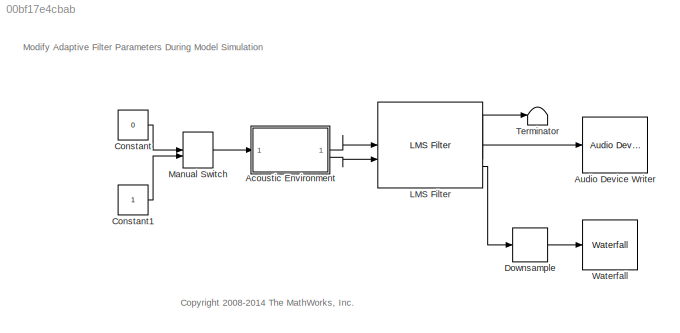
MODEL slx_00bf17e4cbab
KIND model
CONFIG AbsTol = auto
CONFIG EnableMultiTasking = on
CONFIG FixedStep = auto
CONFIG MaxStep = auto
CONFIG MinStep = auto
CONFIG RelTol = 1e-3
CONFIG SampleTimeConstraint = Unconstrained
CONFIG SolverName = ode45
CONFIG StartTime = 0.0
CONFIG StopTime = 10.0
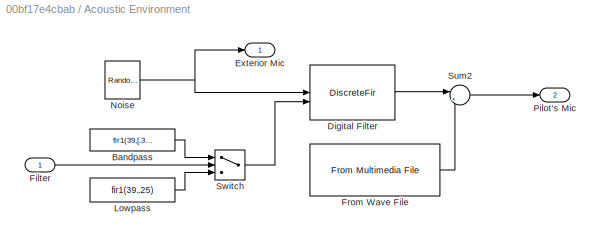
BLOCK [SubSystem] Acoustic Environment
  NameLocation = top
BLOCK [Constant] Acoustic Environment/Bandpass
  NameLocation = top
  OutDataTypeStr = Inherit: Inherit via back propagation
  Value = fir1(39,[.3 .5])
BLOCK [DiscreteFir] Acoustic Environment/Digital Filter
  AccumDataTypeStr = Inherit: Same as product output
  CoefSource = Input port
  Coefficients = [1 2]
  InputPortMap = u0,u1
  InputProcessing = Columns as channels (frame based)
  OutDataTypeStr = Inherit: Same as input
  OutputPortMap = o0
  ProductDataTypeStr = Inherit: Same as input
  StateDataTypeStr = Inherit: Same as input
BLOCK [Outport] Acoustic Environment/Exterior Mic
  NameLocation = top
  VectorParamsAs1DForOutWhenUnconnected = off
BLOCK [Inport] Acoustic Environment/Filter
BLOCK [Reference] Acoustic Environment/From Wave File  REF=dspvision/From Multimedia File
  SourceBlock = dspvision/From Multimedia File
  SourceType = From Multimedia File
BLOCK [Constant] Acoustic Environment/Lowpass
  OutDataTypeStr = Inherit: Inherit via back propagation
  Value = fir1(39,.25)
BLOCK [Reference] Acoustic Environment/Noise  REF=dspsrcs4/Random
Source
  NameLocation = top
  SourceBlock = dspsrcs4/Random\nSource
  SourceType = Random Source
BLOCK [Outport] Acoustic Environment/Pilot's Mic
  Port = 2
  VectorParamsAs1DForOutWhenUnconnected = off
BLOCK [Sum] Acoustic Environment/Sum2
  InputSameDT = on
  Inputs = |++
  OutDataTypeStr = Inherit: Same as first input
  SaturateOnIntegerOverflow = on
BLOCK [Switch] Acoustic Environment/Switch
  Criteria = u2 ~= 0
  InputSameDT = off
BLOCK [Reference] Audio Device Writer  REF=dspsnks4/Audio Device
Writer
  SourceBlock = dspsnks4/Audio Device\nWriter
  SourceType = Audio Device Writer
BLOCK [Constant] Constant
  Value = 0
BLOCK [Constant] Constant1
BLOCK [DownSample] Downsample
  InputProcessing = Elements as channels (sample based)
  N = 32
  RateOptions = Allow multirate processing
  UserDataPersistent = on
BLOCK [Reference] LMS Filter  REF=dspadpt3/LMS Filter
  SourceBlock = dspadpt3/LMS Filter
  SourceType = LMS Filter
BLOCK [ManualSwitch] Manual Switch
BLOCK [Terminator] Terminator
BLOCK [Reference] Waterfall  REF=dspobslib/Waterfall
  SourceBlock = dspobslib/Waterfall
  SourceType = Waterfall
ANNOTATION (root): <copyright redacted>
ANNOTATION (root): Modify Adaptive Filter Parameters During Model Simulation
LINE Acoustic Environment/Bandpass:1 -> Acoustic Environment/Switch:1
LINE Acoustic Environment/Digital Filter:1 -> Acoustic Environment/Sum2:1
LINE Acoustic Environment/Filter:1 -> Acoustic Environment/Switch:2
LINE Acoustic Environment/From Wave File:1 -> Acoustic Environment/Sum2:2
LINE Acoustic Environment/Lowpass:1 -> Acoustic Environment/Switch:3
NET Acoustic Environment/Noise:1 -> Acoustic Environment/Digital Filter:1, Acoustic Environment/Exterior Mic:1
LINE Acoustic Environment/Sum2:1 -> Acoustic Environment/Pilot's Mic:1
LINE Acoustic Environment/Switch:1 -> Acoustic Environment/Digital Filter:2
LINE Acoustic Environment:1 -> LMS Filter:1
LINE Acoustic Environment:2 -> LMS Filter:2
LINE Constant1:1 -> Manual Switch:2
LINE Constant:1 -> Manual Switch:1
LINE Downsample:1 -> Waterfall:1
LINE LMS Filter:1 -> Terminator:1
LINE LMS Filter:2 -> Audio Device Writer:1
LINE LMS Filter:3 -> Downsample:1
LINE Manual Switch:1 -> Acoustic Environment:1
note: NET lines group one-source signal fan-out (src -> all destinations, sorted); 1:1 wires keep LINE
